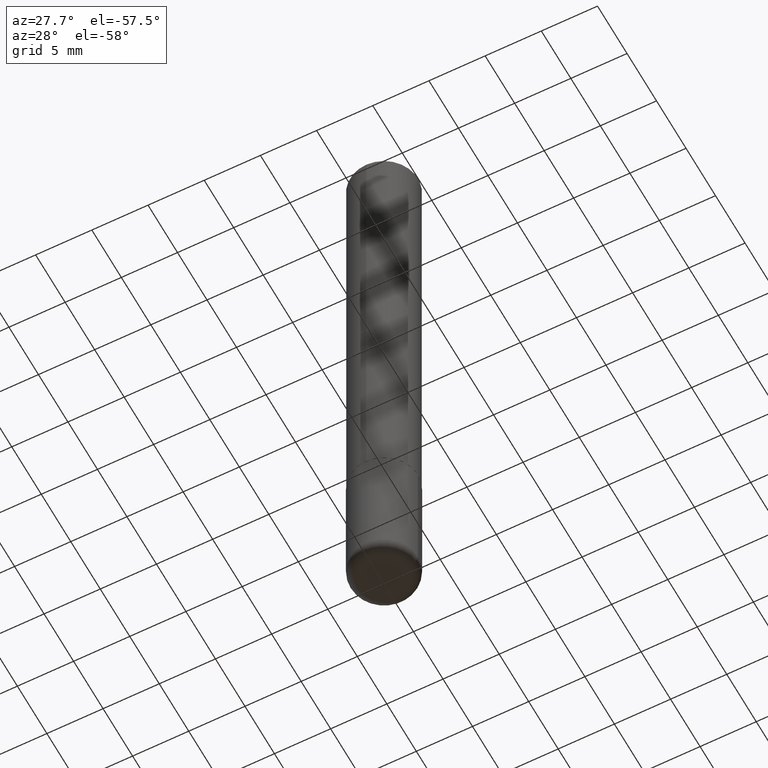
[diagram: clean part render]
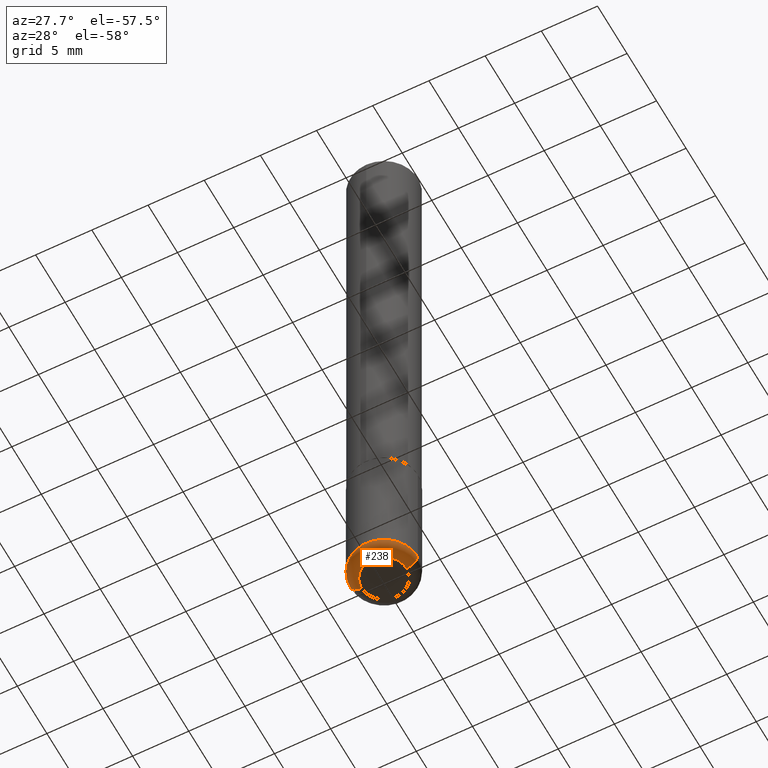
[diagram: same view with one face highlighted and labeled with its STEP entity id]
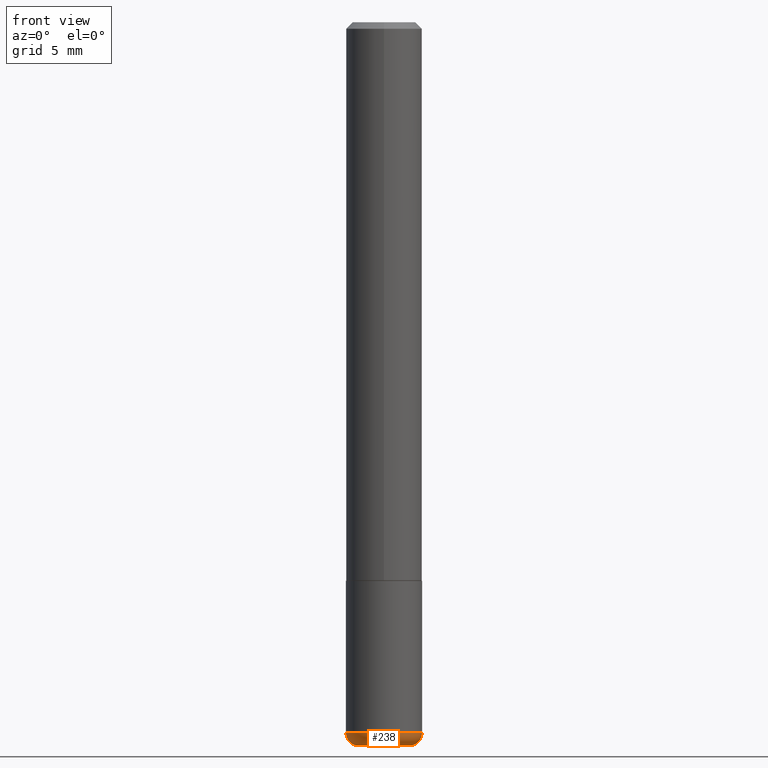
[diagram: same view with one face highlighted and labeled with its STEP entity id]
A machine part, auxiliary view. The second image highlights one B-rep face of the part: STEP entity #238.
A second angle (front view) of the same face is appended — the face is thin or edge-on in the first view.
In plain terms, the highlighted toroidal blend (fillet) surface has major radius 1.999 mm and minor (blend) radius 1.0008 mm.
Its self-contained STEP definition (entity closure, byte-faithful):
#2 = TOROIDAL_SURFACE ( 'NONE', #266, 0.07870000000000000606, 0.03939999999999978936 ) ;
#10 = DIRECTION ( 'NONE',  ( 7.105427357601001859E-15, 1.000000000000000000, -3.491481338843145583E-15 ) ) ;
#23 = CIRCLE ( 'NONE', #401, 0.03939999999999978936 ) ;
#25 = CARTESIAN_POINT ( 'NONE',  ( 0.07870000000000000606, -8.384792435231810596E-15, -2.244099999999999540 ) ) ;
#53 = CARTESIAN_POINT ( 'NONE',  ( 0.07870000000000000606, -8.247228070481392959E-15, -2.204700000000000326 ) ) ;
#61 = CARTESIAN_POINT ( 'NONE',  ( -0.1180999999999998995, -6.858517936814806506E-15, -2.204700000000000326 ) ) ;
#76 = ORIENTED_EDGE ( 'NONE', *, *, #226, .T. ) ;
#85 = ORIENTED_EDGE ( 'NONE', *, *, #416, .F. ) ;
#107 = EDGE_CURVE ( 'NONE', #153, #378, #277, .T. ) ;
#114 = AXIS2_PLACEMENT_3D ( 'NONE', #213, #10, #400 ) ;
#122 = CIRCLE ( 'NONE', #322, 0.1180999999999999966 ) ;
#125 = ORIENTED_EDGE ( 'NONE', *, *, #107, .F. ) ;
#151 = CARTESIAN_POINT ( 'NONE',  ( 5.391525076996371277E-29, -7.697668907747483125E-15, -2.204700000000000326 ) ) ;
#153 = VERTEX_POINT ( 'NONE', #178 ) ;
#161 = EDGE_LOOP ( 'NONE', ( #125, #350, #76, #85 ) ) ;
#175 = AXIS2_PLACEMENT_3D ( 'NONE', #380, #384, #375 ) ;
#178 = CARTESIAN_POINT ( 'NONE',  ( -0.07870000000000000606, -7.067277038134755422E-15, -2.244099999999999540 ) ) ;
#184 = DIRECTION ( 'NONE',  ( 1.000000000000000000, -6.982962677686268288E-15, 4.883557194083112901E-29 ) ) ;
#213 = CARTESIAN_POINT ( 'NONE',  ( -0.07870000000000000606, -7.138471774704284335E-15, -2.204700000000000326 ) ) ;
#226 = EDGE_CURVE ( 'NONE', #311, #249, #23, .T. ) ;
#228 = DIRECTION ( 'NONE',  ( -2.445468806185136597E-29, 3.491481338843145583E-15, 1.000000000000000000 ) ) ;
#230 = DIRECTION ( 'NONE',  ( 1.000000000000000000, -6.982962677686265133E-15, 0.000000000000000000 ) ) ;
#238 = ADVANCED_FACE ( 'NONE', ( #281 ), #2, .T. ) ;
#248 = DIRECTION ( 'NONE',  ( -6.982962677686266711E-15, -1.000000000000000000, 3.491481338843145583E-15 ) ) ;
#249 = VERTEX_POINT ( 'NONE', #312 ) ;
#266 = AXIS2_PLACEMENT_3D ( 'NONE', #151, #345, #184 ) ;
#272 = CIRCLE ( 'NONE', #175, 0.07870000000000000606 ) ;
#277 = CIRCLE ( 'NONE', #114, 0.03939999999999978936 ) ;
#281 = FACE_OUTER_BOUND ( 'NONE', #161, .T. ) ;
#294 = EDGE_CURVE ( 'NONE', #153, #311, #272, .T. ) ;
#311 = VERTEX_POINT ( 'NONE', #25 ) ;
#312 = CARTESIAN_POINT ( 'NONE',  ( 0.1180999999999998995, -8.522356799982231388E-15, -2.204700000000000326 ) ) ;
#318 = DIRECTION ( 'NONE',  ( 1.000000000000000000, -6.982962677686266711E-15, 0.000000000000000000 ) ) ;
#320 = CARTESIAN_POINT ( 'NONE',  ( 5.391525076996371277E-29, -7.697668907747483125E-15, -2.204700000000000326 ) ) ;
#322 = AXIS2_PLACEMENT_3D ( 'NONE', #320, #228, #230 ) ;
#345 = DIRECTION ( 'NONE',  ( -2.445468806185136597E-29, 3.491481338843145583E-15, 1.000000000000000000 ) ) ;
#350 = ORIENTED_EDGE ( 'NONE', *, *, #294, .T. ) ;
#375 = DIRECTION ( 'NONE',  ( 1.000000000000000000, -6.982962677686269077E-15, 0.000000000000000000 ) ) ;
#378 = VERTEX_POINT ( 'NONE', #61 ) ;
#380 = CARTESIAN_POINT ( 'NONE',  ( 5.487876547960064752E-29, -7.835233272497900762E-15, -2.244099999999999540 ) ) ;
#384 = DIRECTION ( 'NONE',  ( -2.445468806185136597E-29, 3.491481338843145583E-15, 1.000000000000000000 ) ) ;
#400 = DIRECTION ( 'NONE',  ( -1.000000000000000000, 7.105427357600989237E-15, 0.000000000000000000 ) ) ;
#401 = AXIS2_PLACEMENT_3D ( 'NONE', #53, #248, #318 ) ;
#416 = EDGE_CURVE ( 'NONE', #378, #249, #122, .T. ) ;